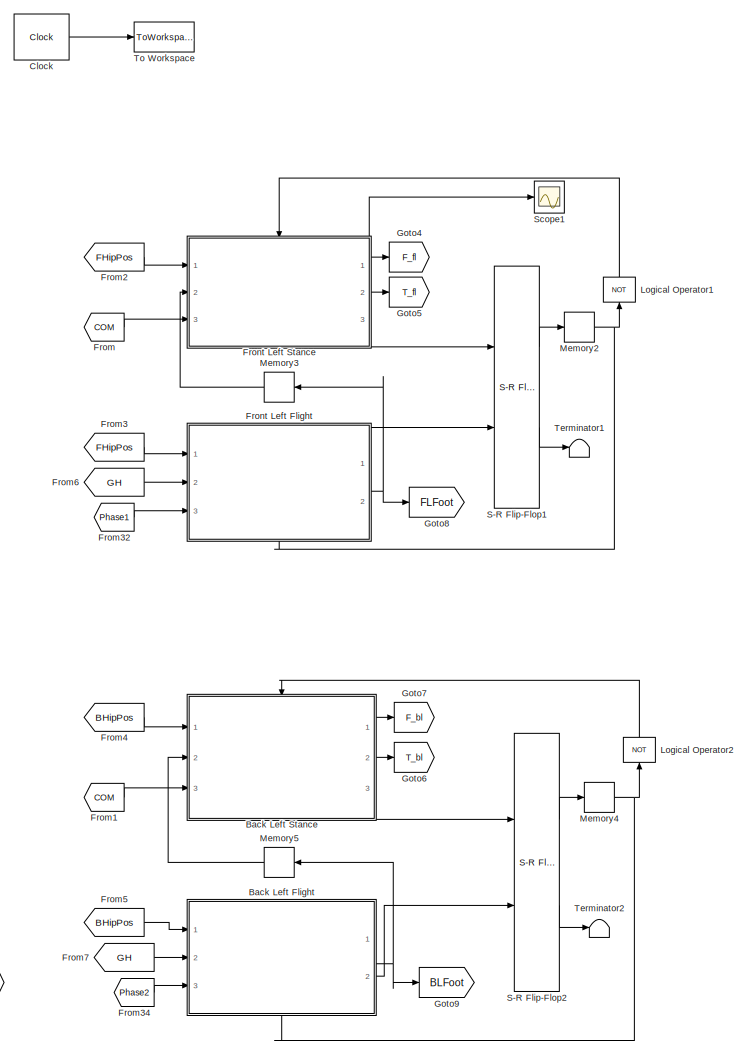
[diagram: root canvas - part 1/3, center side, full height]
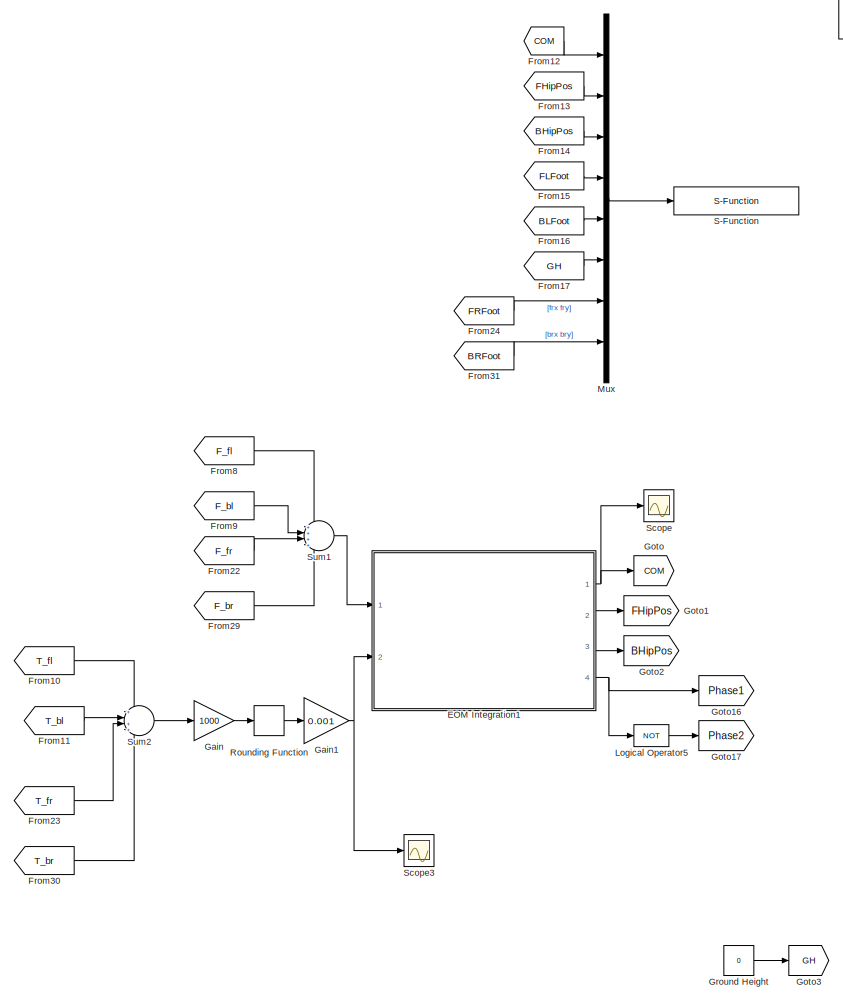
[diagram: root canvas - part 2/3, left side, full height]
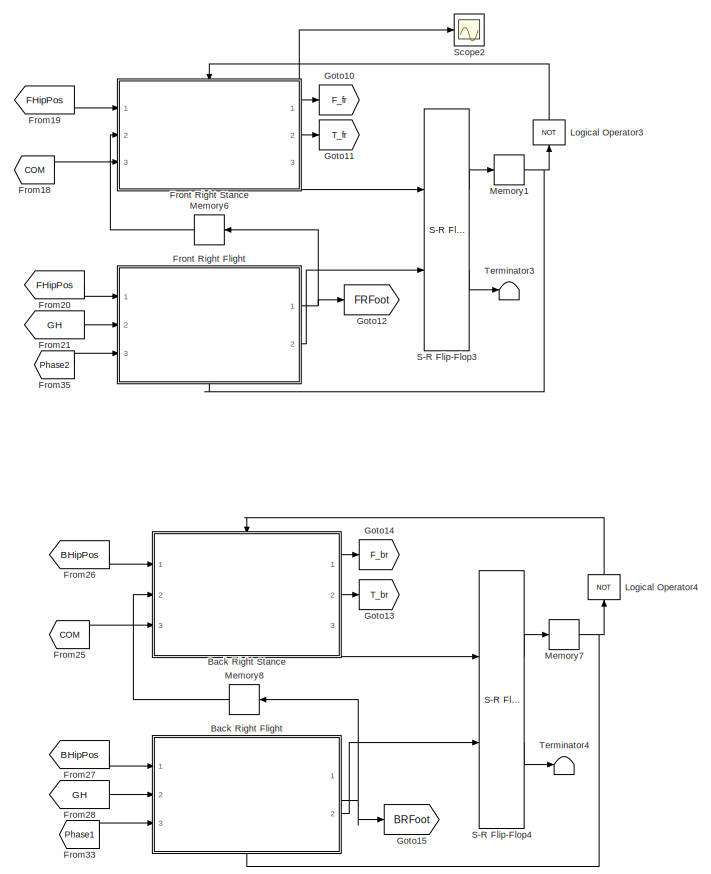
[diagram: root canvas - part 3/3, right side, full height]
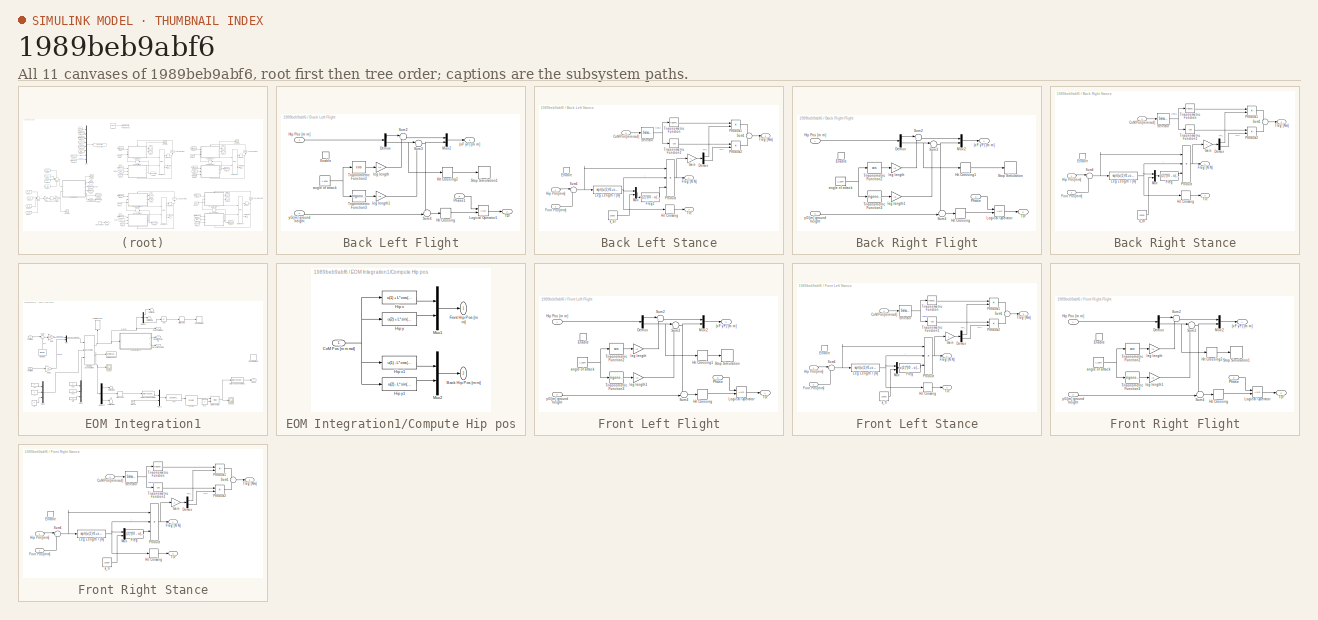
[diagram: thumbnail index - all 11 canvases of the model, root first then tree order]
MODEL slx_1989beb9abf6
KIND model
CONFIG AbsTol = 1e-6
CONFIG FixedStep = auto
CONFIG MaxStep = 1e-3
CONFIG MinStep = auto
CONFIG RelTol = 1e-4
CONFIG SampleTimeConstraint = Unconstrained
CONFIG Solver = ode45
CONFIG SolverMode = Auto
CONFIG SolverName = ode45
CONFIG StartTime = 0.0
CONFIG StopTime = 29
BLOCK [SubSystem] Back Left Flight
  Ports = [3, 2, 1]
  RequestExecContextInheritance = off
  Variant = off
BLOCK [Outport] Back Left Flight/(xF yF) [m m]
  AttributesFormatString = %<OutputWhenDisabled>
  IconDisplay = Port number
  InitialOutput = [0 0]
BLOCK [Demux] Back Left Flight/Demux
  DisplayOption = bar
  Outputs = 2
  Ports = [1, 2]
BLOCK [EnablePort] Back Left Flight/Enable
  Ports = []
  StatesWhenEnabling = reset
BLOCK [Inport] Back Left Flight/Hip Pos [m m]
  IconDisplay = Port number
BLOCK [HitCross] Back Left Flight/Hit Crossing
  HitCrossingDirection = falling
  Ports = [1, 1]
BLOCK [HitCross] Back Left Flight/Hit Crossing2
  HitCrossingDirection = falling
  HitCrossingOffset = -1
  Ports = [1, 1]
BLOCK [Logic] Back Left Flight/Logical Operator1
  AllPortsSameDT = off
  OutDataTypeStr = boolean
  Ports = [2, 1]
BLOCK [Mux] Back Left Flight/Mux2
  DisplayOption = bar
  Inputs = 2
  Ports = [2, 1]
BLOCK [Inport] Back Left Flight/Phase1
  IconDisplay = Port number
  Port = 3
BLOCK [Stop] Back Left Flight/Stop Simulation1
BLOCK [Sum] Back Left Flight/Sum2
  IconShape = round
  InputSameDT = off
  Inputs = |++
  OutDataTypeStr = Inherit: Inherit via internal rule
  Ports = [2, 1]
  SaturateOnIntegerOverflow = off
BLOCK [Sum] Back Left Flight/Sum3
  IconShape = round
  InputSameDT = off
  Inputs = |+-
  OutDataTypeStr = Inherit: Inherit via internal rule
  Ports = [2, 1]
  SaturateOnIntegerOverflow = off
BLOCK [Sum] Back Left Flight/Sum4
  IconShape = round
  InputSameDT = off
  Inputs = +-|
  OutDataTypeStr = Inherit: Inherit via internal rule
  Ports = [2, 1]
  SaturateOnIntegerOverflow = off
BLOCK [Outport] Back Left Flight/TD!
  AttributesFormatString = %<OutputWhenDisabled>
  IconDisplay = Port number
  InitialOutput = 0
  OutputWhenDisabled = reset
  Port = 2
BLOCK [Trigonometry] Back Left Flight/Trigonometric Function2
  Operator = cos
  Ports = [1, 1]
BLOCK [Trigonometry] Back Left Flight/Trigonometric Function3
  Ports = [1, 1]
BLOCK [Constant] Back Left Flight/angle of attack
  Value = 1.1694
BLOCK [Gain] Back Left Flight/leg length
  Gain = l0
  OutDataTypeStr = Inherit: Inherit via internal rule
  ParamDataTypeStr = Inherit: Inherit via internal rule
  SaturateOnIntegerOverflow = off
BLOCK [Gain] Back Left Flight/leg length1
  Gain = l0
  OutDataTypeStr = Inherit: Inherit via internal rule
  ParamDataTypeStr = Inherit: Inherit via internal rule
  SaturateOnIntegerOverflow = off
BLOCK [Inport] Back Left Flight/yG [m] ground height
  IconDisplay = Port number
  Port = 2
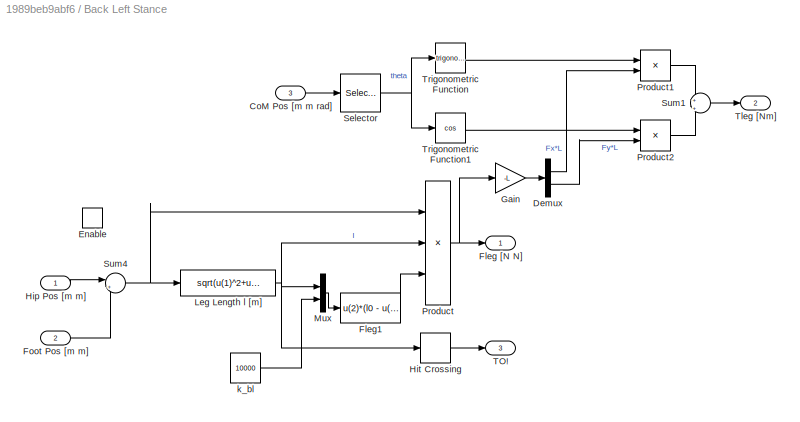
BLOCK [SubSystem] Back Left Stance
  Ports = [3, 3, 1]
  RequestExecContextInheritance = off
  Variant = off
BLOCK [Inport] Back Left Stance/CoM Pos [m m rad]
  IconDisplay = Port number
  Port = 3
BLOCK [Demux] Back Left Stance/Demux
  DisplayOption = bar
  Outputs = 2
  Ports = [1, 2]
BLOCK [EnablePort] Back Left Stance/Enable
  Ports = []
  StatesWhenEnabling = reset
BLOCK [Outport] Back Left Stance/Fleg [N N]
  AttributesFormatString = %<OutputWhenDisabled>
  IconDisplay = Port number
  InitialOutput = [0 0]
  OutputWhenDisabled = reset
BLOCK [Fcn] Back Left Stance/Fleg1
  Expr = u(2)*(l0 - u(1))
BLOCK [Inport] Back Left Stance/Foot Pos [m m]
  IconDisplay = Port number
  Port = 2
BLOCK [Gain] Back Left Stance/Gain
  Gain = -L
  OutDataTypeStr = Inherit: Inherit via internal rule
  ParamDataTypeStr = Inherit: Inherit via internal rule
  SaturateOnIntegerOverflow = off
BLOCK [Inport] Back Left Stance/Hip Pos [m m]
  IconDisplay = Port number
BLOCK [HitCross] Back Left Stance/Hit Crossing
  HitCrossingDirection = rising
  HitCrossingOffset = l0
  Ports = [1, 1]
BLOCK [Fcn] Back Left Stance/Leg Length l [m]
  Expr = sqrt(u(1)^2+u(2)^2)
BLOCK [Mux] Back Left Stance/Mux
  DisplayOption = bar
  Inputs = 2
  Ports = [2, 1]
BLOCK [Product] Back Left Stance/Product
  InputSameDT = off
  Inputs = */*
  OutDataTypeStr = Inherit: Inherit via internal rule
  Ports = [3, 1]
  RndMeth = Floor
  SaturateOnIntegerOverflow = off
BLOCK [Product] Back Left Stance/Product1
  InputSameDT = off
  OutDataTypeStr = Inherit: Inherit via internal rule
  Ports = [2, 1]
  RndMeth = Floor
  SaturateOnIntegerOverflow = off
BLOCK [Product] Back Left Stance/Product2
  InputSameDT = off
  OutDataTypeStr = Inherit: Inherit via internal rule
  Ports = [2, 1]
  RndMeth = Floor
  SaturateOnIntegerOverflow = off
BLOCK [Selector] Back Left Stance/Selector
  IndexOptions = Index vector (dialog)
  Indices = [3]
  InputPortWidth = 3
  OutputSizes = 1
  Ports = [1, 1]
BLOCK [Sum] Back Left Stance/Sum1
  IconShape = round
  InputSameDT = off
  Inputs = +|+
  OutDataTypeStr = Inherit: Inherit via internal rule
  Ports = [2, 1]
  SaturateOnIntegerOverflow = off
BLOCK [Sum] Back Left Stance/Sum4
  IconShape = round
  InputSameDT = off
  Inputs = |+-
  OutDataTypeStr = Inherit: Inherit via internal rule
  Ports = [2, 1]
  SaturateOnIntegerOverflow = off
BLOCK [Outport] Back Left Stance/TO!
  AttributesFormatString = %<OutputWhenDisabled>
  IconDisplay = Port number
  InitialOutput = [0]
  OutputWhenDisabled = reset
  Port = 3
BLOCK [Outport] Back Left Stance/Tleg [Nm]
  AttributesFormatString = %<OutputWhenDisabled>
  IconDisplay = Port number
  InitialOutput = [0]
  OutputWhenDisabled = reset
  Port = 2
BLOCK [Trigonometry] Back Left Stance/Trigonometric Function
  Ports = [1, 1]
BLOCK [Trigonometry] Back Left Stance/Trigonometric Function1
  Operator = cos
  Ports = [1, 1]
BLOCK [Constant] Back Left Stance/k_bl
  Value = 10000
BLOCK [SubSystem] Back Right Flight
  Ports = [3, 2, 1]
  RequestExecContextInheritance = off
  Variant = off
BLOCK [Outport] Back Right Flight/(xF yF) [m m]
  AttributesFormatString = %<OutputWhenDisabled>
  IconDisplay = Port number
  InitialOutput = [0 0]
BLOCK [Demux] Back Right Flight/Demux
  DisplayOption = bar
  Outputs = 2
  Ports = [1, 2]
BLOCK [EnablePort] Back Right Flight/Enable
  Ports = []
  StatesWhenEnabling = reset
BLOCK [Inport] Back Right Flight/Hip Pos [m m]
  IconDisplay = Port number
BLOCK [HitCross] Back Right Flight/Hit Crossing
  HitCrossingDirection = falling
  Ports = [1, 1]
BLOCK [HitCross] Back Right Flight/Hit Crossing1
  HitCrossingDirection = falling
  HitCrossingOffset = -1
  Ports = [1, 1]
BLOCK [Logic] Back Right Flight/Logical Operator
  AllPortsSameDT = off
  OutDataTypeStr = boolean
  Ports = [2, 1]
BLOCK [Mux] Back Right Flight/Mux2
  DisplayOption = bar
  Inputs = 2
  Ports = [2, 1]
BLOCK [Inport] Back Right Flight/Phase
  IconDisplay = Port number
  Port = 3
BLOCK [Stop] Back Right Flight/Stop Simulation
BLOCK [Sum] Back Right Flight/Sum2
  IconShape = round
  InputSameDT = off
  Inputs = |++
  OutDataTypeStr = Inherit: Inherit via internal rule
  Ports = [2, 1]
  SaturateOnIntegerOverflow = off
BLOCK [Sum] Back Right Flight/Sum3
  IconShape = round
  InputSameDT = off
  Inputs = |+-
  OutDataTypeStr = Inherit: Inherit via internal rule
  Ports = [2, 1]
  SaturateOnIntegerOverflow = off
BLOCK [Sum] Back Right Flight/Sum4
  IconShape = round
  InputSameDT = off
  Inputs = +-|
  OutDataTypeStr = Inherit: Inherit via internal rule
  Ports = [2, 1]
  SaturateOnIntegerOverflow = off
BLOCK [Outport] Back Right Flight/TD!
  AttributesFormatString = %<OutputWhenDisabled>
  IconDisplay = Port number
  InitialOutput = 0
  OutputWhenDisabled = reset
  Port = 2
BLOCK [Trigonometry] Back Right Flight/Trigonometric Function2
  Operator = cos
  Ports = [1, 1]
BLOCK [Trigonometry] Back Right Flight/Trigonometric Function3
  Ports = [1, 1]
BLOCK [Constant] Back Right Flight/angle of attack
  Value = 1.1694
BLOCK [Gain] Back Right Flight/leg length
  Gain = l0
  OutDataTypeStr = Inherit: Inherit via internal rule
  ParamDataTypeStr = Inherit: Inherit via internal rule
  SaturateOnIntegerOverflow = off
BLOCK [Gain] Back Right Flight/leg length1
  Gain = l0
  OutDataTypeStr = Inherit: Inherit via internal rule
  ParamDataTypeStr = Inherit: Inherit via internal rule
  SaturateOnIntegerOverflow = off
BLOCK [Inport] Back Right Flight/yG [m] ground height
  IconDisplay = Port number
  Port = 2
BLOCK [SubSystem] Back Right Stance
  Ports = [3, 3, 1]
  RequestExecContextInheritance = off
  Variant = off
BLOCK [Inport] Back Right Stance/CoM Pos [m m rad]
  IconDisplay = Port number
  Port = 3
BLOCK [Demux] Back Right Stance/Demux
  DisplayOption = bar
  Outputs = 2
  Ports = [1, 2]
BLOCK [EnablePort] Back Right Stance/Enable
  Ports = []
  StatesWhenEnabling = reset
BLOCK [Fcn] Back Right Stance/Fleg
  Expr = u(2)*(l0 - u(1))
BLOCK [Outport] Back Right Stance/Fleg [N N]
  AttributesFormatString = %<OutputWhenDisabled>
  IconDisplay = Port number
  InitialOutput = [0 0]
  OutputWhenDisabled = reset
BLOCK [Inport] Back Right Stance/Foot Pos [m m]
  IconDisplay = Port number
  Port = 2
BLOCK [Gain] Back Right Stance/Gain
  Gain = -L
  OutDataTypeStr = Inherit: Inherit via internal rule
  ParamDataTypeStr = Inherit: Inherit via internal rule
  SaturateOnIntegerOverflow = off
BLOCK [Inport] Back Right Stance/Hip Pos [m m]
  IconDisplay = Port number
BLOCK [HitCross] Back Right Stance/Hit Crossing
  HitCrossingDirection = rising
  HitCrossingOffset = l0
  Ports = [1, 1]
BLOCK [Fcn] Back Right Stance/Leg Length l [m]
  Expr = sqrt(u(1)^2+u(2)^2)
BLOCK [Mux] Back Right Stance/Mux
  DisplayOption = bar
  Inputs = 2
  Ports = [2, 1]
BLOCK [Product] Back Right Stance/Product
  InputSameDT = off
  Inputs = */*
  OutDataTypeStr = Inherit: Inherit via internal rule
  Ports = [3, 1]
  RndMeth = Floor
  SaturateOnIntegerOverflow = off
BLOCK [Product] Back Right Stance/Product1
  InputSameDT = off
  OutDataTypeStr = Inherit: Inherit via internal rule
  Ports = [2, 1]
  RndMeth = Floor
  SaturateOnIntegerOverflow = off
BLOCK [Product] Back Right Stance/Product2
  InputSameDT = off
  OutDataTypeStr = Inherit: Inherit via internal rule
  Ports = [2, 1]
  RndMeth = Floor
  SaturateOnIntegerOverflow = off
BLOCK [Selector] Back Right Stance/Selector
  IndexOptions = Index vector (dialog)
  Indices = [3]
  InputPortWidth = 3
  OutputSizes = 1
  Ports = [1, 1]
BLOCK [Sum] Back Right Stance/Sum1
  IconShape = round
  InputSameDT = off
  Inputs = +|+
  OutDataTypeStr = Inherit: Inherit via internal rule
  Ports = [2, 1]
  SaturateOnIntegerOverflow = off
BLOCK [Sum] Back Right Stance/Sum4
  IconShape = round
  InputSameDT = off
  Inputs = |+-
  OutDataTypeStr = Inherit: Inherit via internal rule
  Ports = [2, 1]
  SaturateOnIntegerOverflow = off
BLOCK [Outport] Back Right Stance/TO!
  AttributesFormatString = %<OutputWhenDisabled>
  IconDisplay = Port number
  InitialOutput = [0]
  OutputWhenDisabled = reset
  Port = 3
BLOCK [Outport] Back Right Stance/Tleg [Nm]
  AttributesFormatString = %<OutputWhenDisabled>
  IconDisplay = Port number
  InitialOutput = [0]
  OutputWhenDisabled = reset
  Port = 2
BLOCK [Trigonometry] Back Right Stance/Trigonometric Function
  Ports = [1, 1]
BLOCK [Trigonometry] Back Right Stance/Trigonometric Function1
  Operator = cos
  Ports = [1, 1]
BLOCK [Constant] Back Right Stance/k_br
  Value = 10000
BLOCK [Clock] Clock
  Decimation = 100
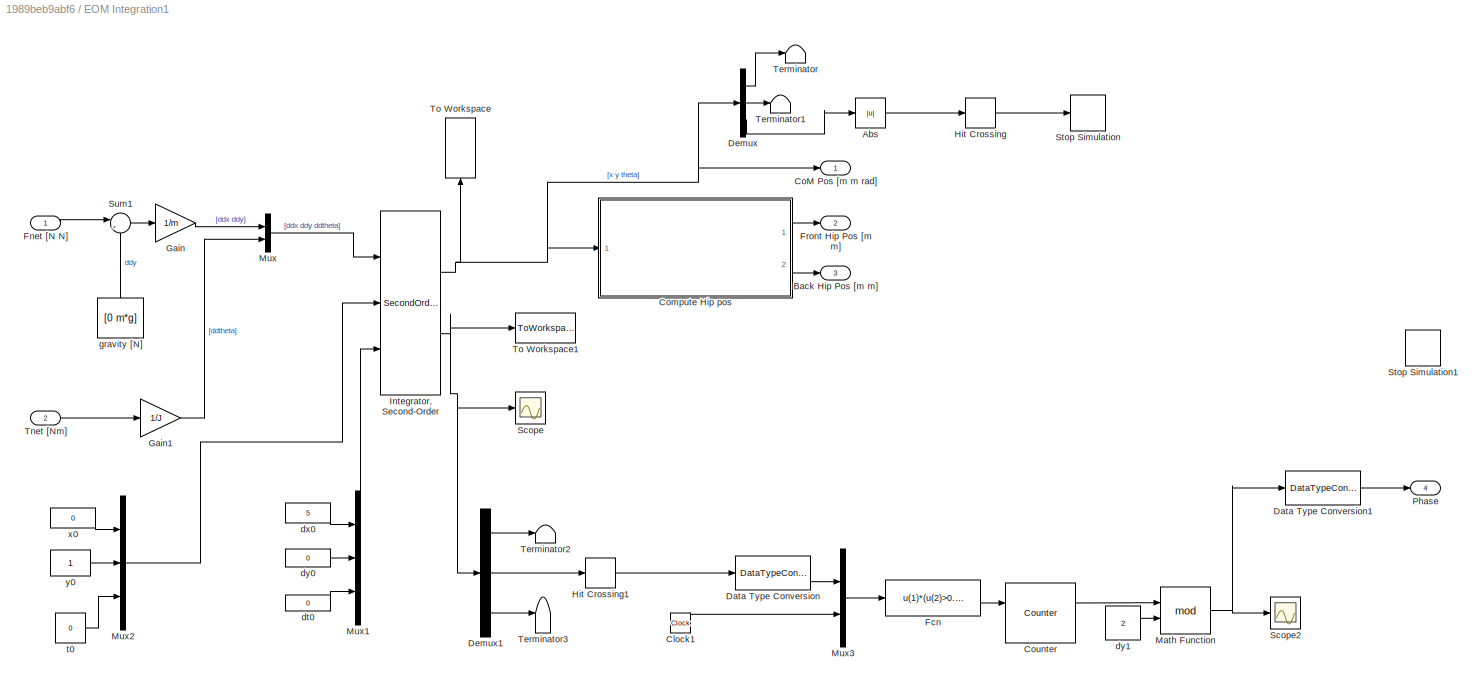
BLOCK [SubSystem] EOM Integration1
  Ports = [2, 4]
  RequestExecContextInheritance = off
  Variant = off
BLOCK [Abs] EOM Integration1/Abs
  SaturateOnIntegerOverflow = off
BLOCK [Outport] EOM Integration1/Back Hip Pos [m m]
  IconDisplay = Port number
  Port = 3
BLOCK [Clock] EOM Integration1/Clock1
BLOCK [Outport] EOM Integration1/CoM Pos [m m rad]
  IconDisplay = Port number
BLOCK [SubSystem] EOM Integration1/Compute Hip pos
  Ports = [1, 2]
  RequestExecContextInheritance = off
  Variant = off
BLOCK [Outport] EOM Integration1/Compute Hip pos/Back Hip Pos [m m]
  IconDisplay = Port number
  Port = 2
BLOCK [Inport] EOM Integration1/Compute Hip pos/CoM Pos [m m rad]
  IconDisplay = Port number
BLOCK [Outport] EOM Integration1/Compute Hip pos/Front Hip Pos [m m]
  IconDisplay = Port number
BLOCK [Fcn] EOM Integration1/Compute Hip pos/Hip x
  Expr = u(1) + L*cos(u(3))
BLOCK [Fcn] EOM Integration1/Compute Hip pos/Hip x1
  Expr = u(1) - L*cos(u(3))
BLOCK [Fcn] EOM Integration1/Compute Hip pos/Hip y
  Expr = u(2) + L*sin(u(3))
BLOCK [Fcn] EOM Integration1/Compute Hip pos/Hip y1
  Expr = u(2) - L*sin(u(3))
BLOCK [Mux] EOM Integration1/Compute Hip pos/Mux1
  DisplayOption = bar
  Inputs = 2
  Ports = [2, 1]
BLOCK [Mux] EOM Integration1/Compute Hip pos/Mux2
  DisplayOption = bar
  Inputs = 2
  Ports = [2, 1]
BLOCK [Reference] EOM Integration1/Counter  REF=dspswit3/Counter
  Ports = [2, 2]
  SourceBlock = dspswit3/Counter
  SourceType = Counter
BLOCK [DataTypeConversion] EOM Integration1/Data Type Conversion
  OutDataTypeStr = double
  RndMeth = Floor
  SaturateOnIntegerOverflow = off
BLOCK [DataTypeConversion] EOM Integration1/Data Type Conversion1
  OutDataTypeStr = boolean
  RndMeth = Floor
  SaturateOnIntegerOverflow = off
BLOCK [Demux] EOM Integration1/Demux
  DisplayOption = bar
  Outputs = 3
  Ports = [1, 3]
BLOCK [Demux] EOM Integration1/Demux1
  DisplayOption = bar
  Outputs = 3
  Ports = [1, 3]
BLOCK [Fcn] EOM Integration1/Fcn
  Expr = u(1)*(u(2)>0.1)
BLOCK [Inport] EOM Integration1/Fnet [N N]
  IconDisplay = Port number
BLOCK [Outport] EOM Integration1/Front Hip Pos [m m]
  IconDisplay = Port number
  Port = 2
BLOCK [Gain] EOM Integration1/Gain
  Gain = 1/m
  OutDataTypeStr = Inherit: Inherit via internal rule
  ParamDataTypeStr = Inherit: Inherit via internal rule
  SaturateOnIntegerOverflow = off
BLOCK [Gain] EOM Integration1/Gain1
  Gain = 1/J
  OutDataTypeStr = Inherit: Inherit via internal rule
  ParamDataTypeStr = Inherit: Inherit via internal rule
  SaturateOnIntegerOverflow = off
BLOCK [HitCross] EOM Integration1/Hit Crossing
  HitCrossingOffset = 1.57
  Ports = [1, 1]
BLOCK [HitCross] EOM Integration1/Hit Crossing1
  HitCrossingDirection = falling
  HitCrossingOffset = 0.0001
  Ports = [1, 1]
BLOCK [SecondOrderIntegrator] EOM Integration1/Integrator, Second-Order
  ICSourceDXDT = external
  ICSourceX = external
  Ports = [3, 2]
BLOCK [Math] EOM Integration1/Math Function
  Operator = mod
  Ports = [2, 1]
BLOCK [Mux] EOM Integration1/Mux
  DisplayOption = bar
  Inputs = 2
  Ports = [2, 1]
BLOCK [Mux] EOM Integration1/Mux1
  DisplayOption = bar
  Inputs = 3
  Ports = [3, 1]
BLOCK [Mux] EOM Integration1/Mux2
  DisplayOption = bar
  Inputs = 3
  Ports = [3, 1]
BLOCK [Mux] EOM Integration1/Mux3
  DisplayOption = bar
  Inputs = 2
  Ports = [2, 1]
BLOCK [Outport] EOM Integration1/Phase
  IconDisplay = Port number
  Port = 4
BLOCK [Scope] EOM Integration1/Scope
  Ports = [1]
  ScopeSpecificationString = Simulink.scopes.TimeScopeBlockCfg('CurrentConfiguration', extmgr.ConfigurationSet(extmgr.Configuration('Core','General UI',true),extmgr.Configuration('Core','Source UI',true),extmgr.Configuration('Sources','WiredSimulink',true,'DataLoggingVariableName','ScopeData2','DataLoggingSaveFormat','Array','DataLoggingDecimation','1','DataLoggingDecimateData',true),extmgr.Configuration('Visuals','Time Domai...<+1771ch>
BLOCK [Scope] EOM Integration1/Scope2
  Ports = [1]
  ScopeSpecificationString = Simulink.scopes.TimeScopeBlockCfg('CurrentConfiguration', extmgr.ConfigurationSet(extmgr.Configuration('Core','General UI',true),extmgr.Configuration('Core','Source UI',true),extmgr.Configuration('Sources','WiredSimulink',true,'DataLoggingVariableName','ScopeData2'),extmgr.Configuration('Visuals','Time Domain',true,'SerializedDisplays',{struct('MinYLimReal','-0.25','MaxYLimReal','2.25','YLabelReal...<+1458ch>
BLOCK [Stop] EOM Integration1/Stop Simulation
BLOCK [Stop] EOM Integration1/Stop Simulation1
  Commented = on
BLOCK [Sum] EOM Integration1/Sum1
  IconShape = round
  InputSameDT = off
  Inputs = |+-
  OutDataTypeStr = Inherit: Inherit via internal rule
  Ports = [2, 1]
  SaturateOnIntegerOverflow = off
BLOCK [Terminator] EOM Integration1/Terminator
BLOCK [Terminator] EOM Integration1/Terminator1
BLOCK [Terminator] EOM Integration1/Terminator2
BLOCK [Terminator] EOM Integration1/Terminator3
BLOCK [Inport] EOM Integration1/Tnet [Nm]
  IconDisplay = Port number
  Port = 2
BLOCK [ToWorkspace] EOM Integration1/To Workspace
  FixptAsFi = on
  MaxDataPoints = inf
  Ports = [1]
  SampleTime = -1
  Save2DSignal = 3-D array (concatenate along third dimension)
  VariableName = pos
BLOCK [ToWorkspace] EOM Integration1/To Workspace1
  FixptAsFi = on
  MaxDataPoints = inf
  Ports = [1]
  SampleTime = -1
  Save2DSignal = 3-D array (concatenate along third dimension)
  VariableName = vel
BLOCK [Constant] EOM Integration1/dt0
  Value = 0
BLOCK [Constant] EOM Integration1/dx0
  Value = 5
BLOCK [Constant] EOM Integration1/dy0
  Value = 0
BLOCK [Constant] EOM Integration1/dy1
  Value = 2
BLOCK [Constant] EOM Integration1/gravity  [N]
  Value = [0 m*g]
BLOCK [Constant] EOM Integration1/t0
  Value = 0
BLOCK [Constant] EOM Integration1/x0
  Value = 0
BLOCK [Constant] EOM Integration1/y0
BLOCK [From] From
  GotoTag = COM
BLOCK [From] From1
  GotoTag = COM
BLOCK [From] From10
  GotoTag = T_fl
BLOCK [From] From11
  GotoTag = T_bl
BLOCK [From] From12
  GotoTag = COM
BLOCK [From] From13
  GotoTag = FHipPos
BLOCK [From] From14
  GotoTag = BHipPos
BLOCK [From] From15
  GotoTag = FLFoot
BLOCK [From] From16
  GotoTag = BLFoot
BLOCK [From] From17
  GotoTag = GH
BLOCK [From] From18
  GotoTag = COM
BLOCK [From] From19
  GotoTag = FHipPos
BLOCK [From] From2
  GotoTag = FHipPos
BLOCK [From] From20
  GotoTag = FHipPos
BLOCK [From] From21
  GotoTag = GH
BLOCK [From] From22
  GotoTag = F_fr
BLOCK [From] From23
  GotoTag = T_fr
BLOCK [From] From24
  GotoTag = FRFoot
BLOCK [From] From25
  GotoTag = COM
BLOCK [From] From26
  GotoTag = BHipPos
BLOCK [From] From27
  GotoTag = BHipPos
BLOCK [From] From28
  GotoTag = GH
BLOCK [From] From29
  GotoTag = F_br
BLOCK [From] From3
  GotoTag = FHipPos
BLOCK [From] From30
  GotoTag = T_br
BLOCK [From] From31
  GotoTag = BRFoot
BLOCK [From] From32
  GotoTag = Phase1
BLOCK [From] From33
  GotoTag = Phase1
BLOCK [From] From34
  GotoTag = Phase2
BLOCK [From] From35
  GotoTag = Phase2
BLOCK [From] From4
  GotoTag = BHipPos
BLOCK [From] From5
  GotoTag = BHipPos
BLOCK [From] From6
  GotoTag = GH
BLOCK [From] From7
  GotoTag = GH
BLOCK [From] From8
  GotoTag = F_fl
BLOCK [From] From9
  GotoTag = F_bl
BLOCK [SubSystem] Front Left Flight
  Ports = [3, 2, 1]
  RequestExecContextInheritance = off
  Variant = off
BLOCK [Outport] Front Left Flight/(xF yF) [m m]
  AttributesFormatString = %<OutputWhenDisabled>
  IconDisplay = Port number
  InitialOutput = [0 0]
  Port = 2
BLOCK [Demux] Front Left Flight/Demux
  DisplayOption = bar
  Outputs = 2
  Ports = [1, 2]
BLOCK [EnablePort] Front Left Flight/Enable
  Ports = []
  StatesWhenEnabling = reset
BLOCK [Inport] Front Left Flight/Hip Pos [m m]
  IconDisplay = Port number
BLOCK [HitCross] Front Left Flight/Hit Crossing
  HitCrossingDirection = falling
  Ports = [1, 1]
BLOCK [HitCross] Front Left Flight/Hit Crossing1
  HitCrossingDirection = falling
  HitCrossingOffset = -1
  Ports = [1, 1]
BLOCK [Logic] Front Left Flight/Logical Operator
  AllPortsSameDT = off
  OutDataTypeStr = boolean
  Ports = [2, 1]
BLOCK [Mux] Front Left Flight/Mux2
  DisplayOption = bar
  Inputs = 2
  Ports = [2, 1]
BLOCK [Inport] Front Left Flight/Phase
  IconDisplay = Port number
  Port = 3
BLOCK [Stop] Front Left Flight/Stop Simulation
BLOCK [Sum] Front Left Flight/Sum2
  IconShape = round
  InputSameDT = off
  Inputs = |++
  OutDataTypeStr = Inherit: Inherit via internal rule
  Ports = [2, 1]
  SaturateOnIntegerOverflow = off
BLOCK [Sum] Front Left Flight/Sum3
  IconShape = round
  InputSameDT = off
  Inputs = |+-
  OutDataTypeStr = Inherit: Inherit via internal rule
  Ports = [2, 1]
  SaturateOnIntegerOverflow = off
BLOCK [Sum] Front Left Flight/Sum4
  IconShape = round
  InputSameDT = off
  Inputs = +-|
  OutDataTypeStr = Inherit: Inherit via internal rule
  Ports = [2, 1]
  SaturateOnIntegerOverflow = off
BLOCK [Outport] Front Left Flight/TD!
  AttributesFormatString = %<OutputWhenDisabled>
  IconDisplay = Port number
  InitialOutput = 0
  OutputWhenDisabled = reset
BLOCK [Trigonometry] Front Left Flight/Trigonometric Function2
  Operator = cos
  Ports = [1, 1]
BLOCK [Trigonometry] Front Left Flight/Trigonometric Function3
  Ports = [1, 1]
BLOCK [Constant] Front Left Flight/angle of attack
  Value = 1.1694
BLOCK [Gain] Front Left Flight/leg length
  Gain = l0
  OutDataTypeStr = Inherit: Inherit via internal rule
  ParamDataTypeStr = Inherit: Inherit via internal rule
  SaturateOnIntegerOverflow = off
BLOCK [Gain] Front Left Flight/leg length1
  Gain = l0
  OutDataTypeStr = Inherit: Inherit via internal rule
  ParamDataTypeStr = Inherit: Inherit via internal rule
  SaturateOnIntegerOverflow = off
BLOCK [Inport] Front Left Flight/yG [m] ground height
  IconDisplay = Port number
  Port = 2
BLOCK [SubSystem] Front Left Stance
  Ports = [3, 3, 1]
  RequestExecContextInheritance = off
  Variant = off
BLOCK [Inport] Front Left Stance/CoM Pos [m m rad]
  IconDisplay = Port number
  Port = 3
BLOCK [Demux] Front Left Stance/Demux
  DisplayOption = bar
  Outputs = 2
  Ports = [1, 2]
BLOCK [EnablePort] Front Left Stance/Enable
  Ports = []
  StatesWhenEnabling = reset
BLOCK [Fcn] Front Left Stance/Fleg
  Expr = u(2)*(l0 - u(1))
BLOCK [Outport] Front Left Stance/Fleg [N N]
  AttributesFormatString = %<OutputWhenDisabled>
  IconDisplay = Port number
  InitialOutput = [0 0]
  OutputWhenDisabled = reset
BLOCK [Inport] Front Left Stance/Foot Pos [m m]
  IconDisplay = Port number
  Port = 2
BLOCK [Gain] Front Left Stance/Gain
  Gain = L
  OutDataTypeStr = Inherit: Inherit via internal rule
  ParamDataTypeStr = Inherit: Inherit via internal rule
  SaturateOnIntegerOverflow = off
BLOCK [Inport] Front Left Stance/Hip Pos [m m]
  IconDisplay = Port number
BLOCK [HitCross] Front Left Stance/Hit Crossing
  HitCrossingDirection = rising
  HitCrossingOffset = l0
  Ports = [1, 1]
BLOCK [Fcn] Front Left Stance/Leg Length l [m]
  Expr = sqrt(u(1)^2+u(2)^2)
BLOCK [Mux] Front Left Stance/Mux
  DisplayOption = bar
  Inputs = 2
  Ports = [2, 1]
BLOCK [Product] Front Left Stance/Product
  InputSameDT = off
  Inputs = */*
  OutDataTypeStr = Inherit: Inherit via internal rule
  Ports = [3, 1]
  RndMeth = Floor
  SaturateOnIntegerOverflow = off
BLOCK [Product] Front Left Stance/Product1
  InputSameDT = off
  OutDataTypeStr = Inherit: Inherit via internal rule
  Ports = [2, 1]
  RndMeth = Floor
  SaturateOnIntegerOverflow = off
BLOCK [Product] Front Left Stance/Product2
  InputSameDT = off
  OutDataTypeStr = Inherit: Inherit via internal rule
  Ports = [2, 1]
  RndMeth = Floor
  SaturateOnIntegerOverflow = off
BLOCK [Selector] Front Left Stance/Selector
  IndexOptions = Index vector (dialog)
  Indices = [3]
  InputPortWidth = 3
  OutputSizes = 1
  Ports = [1, 1]
BLOCK [Sum] Front Left Stance/Sum1
  IconShape = round
  InputSameDT = off
  Inputs = +|+
  OutDataTypeStr = Inherit: Inherit via internal rule
  Ports = [2, 1]
  SaturateOnIntegerOverflow = off
BLOCK [Sum] Front Left Stance/Sum4
  IconShape = round
  InputSameDT = off
  Inputs = |+-
  OutDataTypeStr = Inherit: Inherit via internal rule
  Ports = [2, 1]
  SaturateOnIntegerOverflow = off
BLOCK [Outport] Front Left Stance/TO!
  AttributesFormatString = %<OutputWhenDisabled>
  IconDisplay = Port number
  InitialOutput = [0]
  OutputWhenDisabled = reset
  Port = 3
BLOCK [Outport] Front Left Stance/Tleg [Nm]
  AttributesFormatString = %<OutputWhenDisabled>
  IconDisplay = Port number
  InitialOutput = [0]
  OutputWhenDisabled = reset
  Port = 2
BLOCK [Trigonometry] Front Left Stance/Trigonometric Function
  Ports = [1, 1]
BLOCK [Trigonometry] Front Left Stance/Trigonometric Function1
  Operator = cos
  Ports = [1, 1]
BLOCK [Constant] Front Left Stance/k_fl
  Value = 10000
BLOCK [SubSystem] Front Right Flight
  Ports = [3, 2, 1]
  RequestExecContextInheritance = off
  Variant = off
BLOCK [Outport] Front Right Flight/(xF yF) [m m]
  AttributesFormatString = %<OutputWhenDisabled>
  IconDisplay = Port number
  InitialOutput = [0 0]
BLOCK [Demux] Front Right Flight/Demux
  DisplayOption = bar
  Outputs = 2
  Ports = [1, 2]
BLOCK [EnablePort] Front Right Flight/Enable
  Ports = []
  StatesWhenEnabling = reset
BLOCK [Inport] Front Right Flight/Hip Pos [m m]
  IconDisplay = Port number
BLOCK [HitCross] Front Right Flight/Hit Crossing
  HitCrossingDirection = falling
  Ports = [1, 1]
BLOCK [HitCross] Front Right Flight/Hit Crossing2
  HitCrossingDirection = falling
  HitCrossingOffset = -1
  Ports = [1, 1]
BLOCK [Logic] Front Right Flight/Logical Operator
  AllPortsSameDT = off
  OutDataTypeStr = boolean
  Ports = [2, 1]
BLOCK [Mux] Front Right Flight/Mux2
  DisplayOption = bar
  Inputs = 2
  Ports = [2, 1]
BLOCK [Inport] Front Right Flight/Phase
  IconDisplay = Port number
  Port = 3
BLOCK [Stop] Front Right Flight/Stop Simulation1
BLOCK [Sum] Front Right Flight/Sum2
  IconShape = round
  InputSameDT = off
  Inputs = |++
  OutDataTypeStr = Inherit: Inherit via internal rule
  Ports = [2, 1]
  SaturateOnIntegerOverflow = off
BLOCK [Sum] Front Right Flight/Sum3
  IconShape = round
  InputSameDT = off
  Inputs = |+-
  OutDataTypeStr = Inherit: Inherit via internal rule
  Ports = [2, 1]
  SaturateOnIntegerOverflow = off
BLOCK [Sum] Front Right Flight/Sum4
  IconShape = round
  InputSameDT = off
  Inputs = +-|
  OutDataTypeStr = Inherit: Inherit via internal rule
  Ports = [2, 1]
  SaturateOnIntegerOverflow = off
BLOCK [Outport] Front Right Flight/TD!
  AttributesFormatString = %<OutputWhenDisabled>
  IconDisplay = Port number
  InitialOutput = 0
  OutputWhenDisabled = reset
  Port = 2
BLOCK [Trigonometry] Front Right Flight/Trigonometric Function2
  Operator = cos
  Ports = [1, 1]
BLOCK [Trigonometry] Front Right Flight/Trigonometric Function3
  Ports = [1, 1]
BLOCK [Constant] Front Right Flight/angle of attack
  Value = 1.1694
BLOCK [Gain] Front Right Flight/leg length
  Gain = l0
  OutDataTypeStr = Inherit: Inherit via internal rule
  ParamDataTypeStr = Inherit: Inherit via internal rule
  SaturateOnIntegerOverflow = off
BLOCK [Gain] Front Right Flight/leg length1
  Gain = l0
  OutDataTypeStr = Inherit: Inherit via internal rule
  ParamDataTypeStr = Inherit: Inherit via internal rule
  SaturateOnIntegerOverflow = off
BLOCK [Inport] Front Right Flight/yG [m] ground height
  IconDisplay = Port number
  Port = 2
BLOCK [SubSystem] Front Right Stance
  Ports = [3, 3, 1]
  RequestExecContextInheritance = off
  Variant = off
BLOCK [Inport] Front Right Stance/CoM Pos [m m rad]
  IconDisplay = Port number
  Port = 3
BLOCK [Demux] Front Right Stance/Demux
  DisplayOption = bar
  Outputs = 2
  Ports = [1, 2]
BLOCK [EnablePort] Front Right Stance/Enable
  Ports = []
  StatesWhenEnabling = reset
BLOCK [Fcn] Front Right Stance/Fleg
  Expr = u(2)*(l0 - u(1))
BLOCK [Outport] Front Right Stance/Fleg [N N]
  AttributesFormatString = %<OutputWhenDisabled>
  IconDisplay = Port number
  InitialOutput = [0 0]
  OutputWhenDisabled = reset
BLOCK [Inport] Front Right Stance/Foot Pos [m m]
  IconDisplay = Port number
  Port = 2
BLOCK [Gain] Front Right Stance/Gain
  Gain = L
  OutDataTypeStr = Inherit: Inherit via internal rule
  ParamDataTypeStr = Inherit: Inherit via internal rule
  SaturateOnIntegerOverflow = off
BLOCK [Inport] Front Right Stance/Hip Pos [m m]
  IconDisplay = Port number
BLOCK [HitCross] Front Right Stance/Hit Crossing
  HitCrossingDirection = rising
  HitCrossingOffset = l0
  Ports = [1, 1]
BLOCK [Fcn] Front Right Stance/Leg Length l [m]
  Expr = sqrt(u(1)^2+u(2)^2)
BLOCK [Mux] Front Right Stance/Mux
  DisplayOption = bar
  Inputs = 2
  Ports = [2, 1]
BLOCK [Product] Front Right Stance/Product
  InputSameDT = off
  Inputs = */*
  OutDataTypeStr = Inherit: Inherit via internal rule
  Ports = [3, 1]
  RndMeth = Floor
  SaturateOnIntegerOverflow = off
BLOCK [Product] Front Right Stance/Product1
  InputSameDT = off
  OutDataTypeStr = Inherit: Inherit via internal rule
  Ports = [2, 1]
  RndMeth = Floor
  SaturateOnIntegerOverflow = off
BLOCK [Product] Front Right Stance/Product2
  InputSameDT = off
  OutDataTypeStr = Inherit: Inherit via internal rule
  Ports = [2, 1]
  RndMeth = Floor
  SaturateOnIntegerOverflow = off
BLOCK [Selector] Front Right Stance/Selector
  IndexOptions = Index vector (dialog)
  Indices = [3]
  InputPortWidth = 3
  OutputSizes = 1
  Ports = [1, 1]
BLOCK [Sum] Front Right Stance/Sum1
  IconShape = round
  InputSameDT = off
  Inputs = +|+
  OutDataTypeStr = Inherit: Inherit via internal rule
  Ports = [2, 1]
  SaturateOnIntegerOverflow = off
BLOCK [Sum] Front Right Stance/Sum4
  IconShape = round
  InputSameDT = off
  Inputs = |+-
  OutDataTypeStr = Inherit: Inherit via internal rule
  Ports = [2, 1]
  SaturateOnIntegerOverflow = off
BLOCK [Outport] Front Right Stance/TO!
  AttributesFormatString = %<OutputWhenDisabled>
  IconDisplay = Port number
  InitialOutput = [0]
  OutputWhenDisabled = reset
  Port = 3
BLOCK [Outport] Front Right Stance/Tleg [Nm]
  AttributesFormatString = %<OutputWhenDisabled>
  IconDisplay = Port number
  InitialOutput = [0]
  OutputWhenDisabled = reset
  Port = 2
BLOCK [Trigonometry] Front Right Stance/Trigonometric Function
  Ports = [1, 1]
BLOCK [Trigonometry] Front Right Stance/Trigonometric Function1
  Operator = cos
  Ports = [1, 1]
BLOCK [Constant] Front Right Stance/k_fr
  Value = 10000
BLOCK [Gain] Gain
  Gain = 1000
  OutDataTypeStr = Inherit: Inherit via internal rule
  ParamDataTypeStr = Inherit: Inherit via internal rule
  SaturateOnIntegerOverflow = off
BLOCK [Gain] Gain1
  Gain = 0.001
  OutDataTypeStr = Inherit: Inherit via internal rule
  ParamDataTypeStr = Inherit: Inherit via internal rule
  SaturateOnIntegerOverflow = off
BLOCK [Goto] Goto
  GotoTag = COM
BLOCK [Goto] Goto1
  GotoTag = FHipPos
BLOCK [Goto] Goto10
  GotoTag = F_fr
BLOCK [Goto] Goto11
  GotoTag = T_fr
BLOCK [Goto] Goto12
  GotoTag = FRFoot
BLOCK [Goto] Goto13
  GotoTag = T_br
BLOCK [Goto] Goto14
  GotoTag = F_br
BLOCK [Goto] Goto15
  GotoTag = BRFoot
BLOCK [Goto] Goto16
  GotoTag = Phase1
BLOCK [Goto] Goto17
  GotoTag = Phase2
BLOCK [Goto] Goto2
  GotoTag = BHipPos
BLOCK [Goto] Goto3
  GotoTag = GH
BLOCK [Goto] Goto4
  GotoTag = F_fl
BLOCK [Goto] Goto5
  GotoTag = T_fl
BLOCK [Goto] Goto6
  GotoTag = T_bl
BLOCK [Goto] Goto7
  GotoTag = F_bl
BLOCK [Goto] Goto8
  GotoTag = FLFoot
BLOCK [Goto] Goto9
  GotoTag = BLFoot
BLOCK [Constant] Ground Height
  Value = 0
BLOCK [Logic] Logical Operator1
  AllPortsSameDT = off
  Operator = NOT
  OutDataTypeStr = boolean
  Ports = [1, 1]
BLOCK [Logic] Logical Operator2
  AllPortsSameDT = off
  Operator = NOT
  OutDataTypeStr = boolean
  Ports = [1, 1]
BLOCK [Logic] Logical Operator3
  AllPortsSameDT = off
  Operator = NOT
  OutDataTypeStr = boolean
  Ports = [1, 1]
BLOCK [Logic] Logical Operator4
  AllPortsSameDT = off
  Operator = NOT
  OutDataTypeStr = boolean
  Ports = [1, 1]
BLOCK [Logic] Logical Operator5
  AllPortsSameDT = off
  Operator = NOT
  OutDataTypeStr = boolean
  Ports = [1, 1]
BLOCK [Memory] Memory1
  X0 = 1
BLOCK [Memory] Memory2
  X0 = 1
BLOCK [Memory] Memory3
  X0 = [(x0 - xrf0) (y0 - yrf0) ]
BLOCK [Memory] Memory4
  X0 = 1
BLOCK [Memory] Memory5
  X0 = [(x0 - xrb0) (y0 - yrb0)]
BLOCK [Memory] Memory6
  X0 = [(x0 - xrf0) (y0 - yrf0) ]
BLOCK [Memory] Memory7
  X0 = 1
BLOCK [Memory] Memory8
  X0 = [(x0 - xrb0) (y0 - yrb0)]
BLOCK [Mux] Mux
  DisplayOption = bar
  Inputs = 8
  Ports = [8, 1]
BLOCK [Rounding] Rounding Function
  Operator = round
BLOCK [S-Function] S-Function
  EnableBusSupport = off
  FunctionName = AnimQUAD
  Parameters = 0.005
  Ports = [1]
  SFunctionDeploymentMode = off
BLOCK [Reference] S-R Flip-Flop1  REF=simulink_extras/Flip Flops/S-R
Flip-Flop
  Ports = [2, 2]
  SourceBlock = simulink_extras/Flip Flops/S-R\nFlip-Flop
  SourceType = SRFlipFlop
BLOCK [Reference] S-R Flip-Flop2  REF=simulink_extras/Flip Flops/S-R
Flip-Flop
  Ports = [2, 2]
  SourceBlock = simulink_extras/Flip Flops/S-R\nFlip-Flop
  SourceType = SRFlipFlop
BLOCK [Reference] S-R Flip-Flop3  REF=simulink_extras/Flip Flops/S-R
Flip-Flop
  Ports = [2, 2]
  SourceBlock = simulink_extras/Flip Flops/S-R\nFlip-Flop
  SourceType = SRFlipFlop
BLOCK [Reference] S-R Flip-Flop4  REF=simulink_extras/Flip Flops/S-R
Flip-Flop
  Ports = [2, 2]
  SourceBlock = simulink_extras/Flip Flops/S-R\nFlip-Flop
  SourceType = SRFlipFlop
BLOCK [Scope] Scope
  Ports = [1]
  ScopeSpecificationString = Simulink.scopes.TimeScopeBlockCfg('CurrentConfiguration', extmgr.ConfigurationSet(extmgr.Configuration('Core','General UI',true),extmgr.Configuration('Core','Source UI',true),extmgr.Configuration('Sources','WiredSimulink',true,'DataLoggingSaveFormat','Array','DataLoggingDecimation','1','DataLoggingDecimateData',true),extmgr.Configuration('Visuals','Time Domain',true,'SerializedDisplays',{struct('M...<+1703ch>
BLOCK [Scope] Scope1
  Ports = [1]
  ScopeSpecificationString = Simulink.scopes.TimeScopeBlockCfg('CurrentConfiguration', extmgr.ConfigurationSet(extmgr.Configuration('Core','General UI',true),extmgr.Configuration('Core','Source UI',true),extmgr.Configuration('Sources','WiredSimulink',true,'DataLoggingVariableName','ScopeData1','DataLoggingLimitDataPoints',true,'DataLoggingSaveFormat','Array','DataLoggingDecimation','1','DataLoggingDecimateData',true),extmgr.C...<+899ch>
BLOCK [Scope] Scope2
  Ports = [1]
  ScopeSpecificationString = Simulink.scopes.TimeScopeBlockCfg('CurrentConfiguration', extmgr.ConfigurationSet(extmgr.Configuration('Core','General UI',true),extmgr.Configuration('Core','Source UI',true),extmgr.Configuration('Sources','WiredSimulink',true,'DataLoggingVariableName','ScopeData3','DataLoggingLimitDataPoints',true,'DataLoggingSaveFormat','Array','DataLoggingDecimation','1','DataLoggingDecimateData',true),extmgr.C...<+899ch>
BLOCK [Scope] Scope3
  Ports = [1]
  ScopeSpecificationString = Simulink.scopes.TimeScopeBlockCfg('CurrentConfiguration', extmgr.ConfigurationSet(extmgr.Configuration('Core','General UI',true),extmgr.Configuration('Core','Source UI',true),extmgr.Configuration('Sources','WiredSimulink',true,'DataLoggingSaveFormat','Array','DataLoggingDecimation','1','DataLoggingDecimateData',true,'DataLoggingVariableName','ScopeData4'),extmgr.Configuration('Visuals','Time Domai...<+1649ch>
BLOCK [Sum] Sum1
  IconShape = round
  InputSameDT = off
  Inputs = ++++
  OutDataTypeStr = Inherit: Inherit via internal rule
  Ports = [4, 1]
  SaturateOnIntegerOverflow = off
BLOCK [Sum] Sum2
  IconShape = round
  InputSameDT = off
  Inputs = +|+++
  OutDataTypeStr = Inherit: Inherit via internal rule
  Ports = [4, 1]
  SaturateOnIntegerOverflow = off
BLOCK [Terminator] Terminator1
BLOCK [Terminator] Terminator2
BLOCK [Terminator] Terminator3
BLOCK [Terminator] Terminator4
BLOCK [ToWorkspace] To Workspace
  FixptAsFi = on
  MaxDataPoints = 1
  Ports = [1]
  SampleTime = -1
  Save2DSignal = 3-D array (concatenate along third dimension)
  VariableName = time_of_sim
LINE Back Left Flight/Demux:1 -> Back Left Flight/Sum2:1
NET Back Left Flight/Demux:2 -> Back Left Flight/Hit Crossing2:1, Back Left Flight/Sum3:1
LINE Back Left Flight/Hip Pos [m m]:1 -> Back Left Flight/Demux:1
LINE Back Left Flight/Hit Crossing2:1 -> Back Left Flight/Stop Simulation1:1
LINE Back Left Flight/Hit Crossing:1 -> Back Left Flight/Logical Operator1:2
LINE Back Left Flight/Logical Operator1:1 -> Back Left Flight/TD!:1
LINE Back Left Flight/Mux2:1 -> Back Left Flight/(xF yF) [m m]:1
LINE Back Left Flight/Phase1:1 -> Back Left Flight/Logical Operator1:1
LINE Back Left Flight/Sum2:1 -> Back Left Flight/Mux2:1
NET Back Left Flight/Sum3:1 -> Back Left Flight/Mux2:2, Back Left Flight/Sum4:1
LINE Back Left Flight/Sum4:1 -> Back Left Flight/Hit Crossing:1
LINE Back Left Flight/Trigonometric Function2:1 -> Back Left Flight/leg length:1
LINE Back Left Flight/Trigonometric Function3:1 -> Back Left Flight/leg length1:1
NET Back Left Flight/angle of attack:1 -> Back Left Flight/Trigonometric Function2:1, Back Left Flight/Trigonometric Function3:1
LINE Back Left Flight/leg length1:1 -> Back Left Flight/Sum3:2
LINE Back Left Flight/leg length:1 -> Back Left Flight/Sum2:2
LINE Back Left Flight/yG [m] ground height:1 -> Back Left Flight/Sum4:2
NET Back Left Flight:1 -> Goto9:1, Memory5:1
LINE Back Left Flight:2 -> S-R Flip-Flop2:2
LINE Back Left Stance/CoM Pos [m m rad]:1 -> Back Left Stance/Selector:1
LINE Back Left Stance/Demux:1 -> Back Left Stance/Product1:2
LINE Back Left Stance/Demux:2 -> Back Left Stance/Product2:2
LINE Back Left Stance/Fleg1:1 -> Back Left Stance/Product:3
LINE Back Left Stance/Foot Pos [m m]:1 -> Back Left Stance/Sum4:2
LINE Back Left Stance/Gain:1 -> Back Left Stance/Demux:1
LINE Back Left Stance/Hip Pos [m m]:1 -> Back Left Stance/Sum4:1
LINE Back Left Stance/Hit Crossing:1 -> Back Left Stance/TO!:1
NET Back Left Stance/Leg Length l [m]:1 -> Back Left Stance/Hit Crossing:1, Back Left Stance/Mux:1, Back Left Stance/Product:2
LINE Back Left Stance/Mux:1 -> Back Left Stance/Fleg1:1
LINE Back Left Stance/Product1:1 -> Back Left Stance/Sum1:1
LINE Back Left Stance/Product2:1 -> Back Left Stance/Sum1:2
NET Back Left Stance/Product:1 -> Back Left Stance/Fleg [N N]:1, Back Left Stance/Gain:1
NET Back Left Stance/Selector:1 -> Back Left Stance/Trigonometric Function1:1, Back Left Stance/Trigonometric Function:1
LINE Back Left Stance/Sum1:1 -> Back Left Stance/Tleg [Nm]:1
NET Back Left Stance/Sum4:1 -> Back Left Stance/Leg Length l [m]:1, Back Left Stance/Product:1
LINE Back Left Stance/Trigonometric Function1:1 -> Back Left Stance/Product2:1
LINE Back Left Stance/Trigonometric Function:1 -> Back Left Stance/Product1:1
LINE Back Left Stance/k_bl:1 -> Back Left Stance/Mux:2
LINE Back Left Stance:1 -> Goto7:1
LINE Back Left Stance:2 -> Goto6:1
LINE Back Left Stance:3 -> S-R Flip-Flop2:1
LINE Back Right Flight/Demux:1 -> Back Right Flight/Sum2:1
NET Back Right Flight/Demux:2 -> Back Right Flight/Hit Crossing1:1, Back Right Flight/Sum3:1
LINE Back Right Flight/Hip Pos [m m]:1 -> Back Right Flight/Demux:1
LINE Back Right Flight/Hit Crossing1:1 -> Back Right Flight/Stop Simulation:1
LINE Back Right Flight/Hit Crossing:1 -> Back Right Flight/Logical Operator:2
LINE Back Right Flight/Logical Operator:1 -> Back Right Flight/TD!:1
LINE Back Right Flight/Mux2:1 -> Back Right Flight/(xF yF) [m m]:1
LINE Back Right Flight/Phase:1 -> Back Right Flight/Logical Operator:1
LINE Back Right Flight/Sum2:1 -> Back Right Flight/Mux2:1
NET Back Right Flight/Sum3:1 -> Back Right Flight/Mux2:2, Back Right Flight/Sum4:1
LINE Back Right Flight/Sum4:1 -> Back Right Flight/Hit Crossing:1
LINE Back Right Flight/Trigonometric Function2:1 -> Back Right Flight/leg length:1
LINE Back Right Flight/Trigonometric Function3:1 -> Back Right Flight/leg length1:1
NET Back Right Flight/angle of attack:1 -> Back Right Flight/Trigonometric Function2:1, Back Right Flight/Trigonometric Function3:1
LINE Back Right Flight/leg length1:1 -> Back Right Flight/Sum3:2
LINE Back Right Flight/leg length:1 -> Back Right Flight/Sum2:2
LINE Back Right Flight/yG [m] ground height:1 -> Back Right Flight/Sum4:2
NET Back Right Flight:1 -> Goto15:1, Memory8:1
LINE Back Right Flight:2 -> S-R Flip-Flop4:2
LINE Back Right Stance/CoM Pos [m m rad]:1 -> Back Right Stance/Selector:1
LINE Back Right Stance/Demux:1 -> Back Right Stance/Product1:2
LINE Back Right Stance/Demux:2 -> Back Right Stance/Product2:2
LINE Back Right Stance/Fleg:1 -> Back Right Stance/Product:3
LINE Back Right Stance/Foot Pos [m m]:1 -> Back Right Stance/Sum4:2
LINE Back Right Stance/Gain:1 -> Back Right Stance/Demux:1
LINE Back Right Stance/Hip Pos [m m]:1 -> Back Right Stance/Sum4:1
LINE Back Right Stance/Hit Crossing:1 -> Back Right Stance/TO!:1
NET Back Right Stance/Leg Length l [m]:1 -> Back Right Stance/Hit Crossing:1, Back Right Stance/Mux:1, Back Right Stance/Product:2
LINE Back Right Stance/Mux:1 -> Back Right Stance/Fleg:1
LINE Back Right Stance/Product1:1 -> Back Right Stance/Sum1:1
LINE Back Right Stance/Product2:1 -> Back Right Stance/Sum1:2
NET Back Right Stance/Product:1 -> Back Right Stance/Fleg [N N]:1, Back Right Stance/Gain:1
NET Back Right Stance/Selector:1 -> Back Right Stance/Trigonometric Function1:1, Back Right Stance/Trigonometric Function:1
LINE Back Right Stance/Sum1:1 -> Back Right Stance/Tleg [Nm]:1
NET Back Right Stance/Sum4:1 -> Back Right Stance/Leg Length l [m]:1, Back Right Stance/Product:1
LINE Back Right Stance/Trigonometric Function1:1 -> Back Right Stance/Product2:1
LINE Back Right Stance/Trigonometric Function:1 -> Back Right Stance/Product1:1
LINE Back Right Stance/k_br:1 -> Back Right Stance/Mux:2
LINE Back Right Stance:1 -> Goto14:1
LINE Back Right Stance:2 -> Goto13:1
LINE Back Right Stance:3 -> S-R Flip-Flop4:1
LINE Clock:1 -> To Workspace:1
LINE EOM Integration1/Abs:1 -> EOM Integration1/Hit Crossing:1
LINE EOM Integration1/Clock1:1 -> EOM Integration1/Mux3:2
NET EOM Integration1/Compute Hip pos/CoM Pos [m m rad]:1 -> EOM Integration1/Compute Hip pos/Hip x1:1, EOM Integration1/Compute Hip pos/Hip x:1, EOM Integration1/Compute Hip pos/Hip y1:1, EOM Integration1/Compute Hip pos/Hip y:1
LINE EOM Integration1/Compute Hip pos/Hip x1:1 -> EOM Integration1/Compute Hip pos/Mux2:1
LINE EOM Integration1/Compute Hip pos/Hip x:1 -> EOM Integration1/Compute Hip pos/Mux1:1
LINE EOM Integration1/Compute Hip pos/Hip y1:1 -> EOM Integration1/Compute Hip pos/Mux2:2
LINE EOM Integration1/Compute Hip pos/Hip y:1 -> EOM Integration1/Compute Hip pos/Mux1:2
LINE EOM Integration1/Compute Hip pos/Mux1:1 -> EOM Integration1/Compute Hip pos/Front Hip Pos [m m]:1
LINE EOM Integration1/Compute Hip pos/Mux2:1 -> EOM Integration1/Compute Hip pos/Back Hip Pos [m m]:1
LINE EOM Integration1/Compute Hip pos:1 -> EOM Integration1/Front Hip Pos [m m]:1
LINE EOM Integration1/Compute Hip pos:2 -> EOM Integration1/Back Hip Pos [m m]:1
LINE EOM Integration1/Counter:1 -> EOM Integration1/Math Function:1
LINE EOM Integration1/Data Type Conversion1:1 -> EOM Integration1/Phase:1
LINE EOM Integration1/Data Type Conversion:1 -> EOM Integration1/Mux3:1
LINE EOM Integration1/Demux1:1 -> EOM Integration1/Terminator2:1
LINE EOM Integration1/Demux1:2 -> EOM Integration1/Hit Crossing1:1
LINE EOM Integration1/Demux1:3 -> EOM Integration1/Terminator3:1
LINE EOM Integration1/Demux:1 -> EOM Integration1/Terminator:1
LINE EOM Integration1/Demux:2 -> EOM Integration1/Terminator1:1
LINE EOM Integration1/Demux:3 -> EOM Integration1/Abs:1
LINE EOM Integration1/Fcn:1 -> EOM Integration1/Counter:1
LINE EOM Integration1/Fnet [N N]:1 -> EOM Integration1/Sum1:1
LINE EOM Integration1/Gain1:1 -> EOM Integration1/Mux:2
LINE EOM Integration1/Gain:1 -> EOM Integration1/Mux:1
LINE EOM Integration1/Hit Crossing1:1 -> EOM Integration1/Data Type Conversion:1
LINE EOM Integration1/Hit Crossing:1 -> EOM Integration1/Stop Simulation:1
NET EOM Integration1/Integrator, Second-Order:1 -> EOM Integration1/CoM Pos [m m rad]:1, EOM Integration1/Compute Hip pos:1, EOM Integration1/Demux:1, EOM Integration1/To Workspace:1
NET EOM Integration1/Integrator, Second-Order:2 -> EOM Integration1/Demux1:1, EOM Integration1/Scope:1, EOM Integration1/To Workspace1:1
NET EOM Integration1/Math Function:1 -> EOM Integration1/Data Type Conversion1:1, EOM Integration1/Scope2:1
LINE EOM Integration1/Mux1:1 -> EOM Integration1/Integrator, Second-Order:3
LINE EOM Integration1/Mux2:1 -> EOM Integration1/Integrator, Second-Order:2
LINE EOM Integration1/Mux3:1 -> EOM Integration1/Fcn:1
LINE EOM Integration1/Mux:1 -> EOM Integration1/Integrator, Second-Order:1
LINE EOM Integration1/Sum1:1 -> EOM Integration1/Gain:1
LINE EOM Integration1/Tnet [Nm]:1 -> EOM Integration1/Gain1:1
LINE EOM Integration1/dt0:1 -> EOM Integration1/Mux1:3
LINE EOM Integration1/dx0:1 -> EOM Integration1/Mux1:1
LINE EOM Integration1/dy0:1 -> EOM Integration1/Mux1:2
LINE EOM Integration1/dy1:1 -> EOM Integration1/Math Function:2
LINE EOM Integration1/gravity  [N]:1 -> EOM Integration1/Sum1:2
LINE EOM Integration1/t0:1 -> EOM Integration1/Mux2:3
LINE EOM Integration1/x0:1 -> EOM Integration1/Mux2:1
LINE EOM Integration1/y0:1 -> EOM Integration1/Mux2:2
NET EOM Integration1:1 -> Goto:1, Scope:1
LINE EOM Integration1:2 -> Goto1:1
LINE EOM Integration1:3 -> Goto2:1
NET EOM Integration1:4 -> Goto16:1, Logical Operator5:1
LINE From10:1 -> Sum2:1
LINE From11:1 -> Sum2:2
LINE From12:1 -> Mux:1
LINE From13:1 -> Mux:2
LINE From14:1 -> Mux:3
LINE From15:1 -> Mux:4
LINE From16:1 -> Mux:5
LINE From17:1 -> Mux:6
LINE From18:1 -> Front Right Stance:3
LINE From19:1 -> Front Right Stance:1
LINE From1:1 -> Back Left Stance:3
LINE From20:1 -> Front Right Flight:1
LINE From21:1 -> Front Right Flight:2
LINE From22:1 -> Sum1:3
LINE From23:1 -> Sum2:3
LINE From24:1 -> Mux:7
LINE From25:1 -> Back Right Stance:3
LINE From26:1 -> Back Right Stance:1
LINE From27:1 -> Back Right Flight:1
LINE From28:1 -> Back Right Flight:2
LINE From29:1 -> Sum1:4
LINE From2:1 -> Front Left Stance:1
LINE From30:1 -> Sum2:4
LINE From31:1 -> Mux:8
LINE From32:1 -> Front Left Flight:3
LINE From33:1 -> Back Right Flight:3
LINE From34:1 -> Back Left Flight:3
LINE From35:1 -> Front Right Flight:3
LINE From3:1 -> Front Left Flight:1
LINE From4:1 -> Back Left Stance:1
LINE From5:1 -> Back Left Flight:1
LINE From6:1 -> Front Left Flight:2
LINE From7:1 -> Back Left Flight:2
LINE From8:1 -> Sum1:1
LINE From9:1 -> Sum1:2
LINE From:1 -> Front Left Stance:3
LINE Front Left Flight/Demux:1 -> Front Left Flight/Sum2:1
NET Front Left Flight/Demux:2 -> Front Left Flight/Hit Crossing1:1, Front Left Flight/Sum3:1
LINE Front Left Flight/Hip Pos [m m]:1 -> Front Left Flight/Demux:1
LINE Front Left Flight/Hit Crossing1:1 -> Front Left Flight/Stop Simulation:1
LINE Front Left Flight/Hit Crossing:1 -> Front Left Flight/Logical Operator:2
LINE Front Left Flight/Logical Operator:1 -> Front Left Flight/TD!:1
LINE Front Left Flight/Mux2:1 -> Front Left Flight/(xF yF) [m m]:1
LINE Front Left Flight/Phase:1 -> Front Left Flight/Logical Operator:1
LINE Front Left Flight/Sum2:1 -> Front Left Flight/Mux2:1
NET Front Left Flight/Sum3:1 -> Front Left Flight/Mux2:2, Front Left Flight/Sum4:1
LINE Front Left Flight/Sum4:1 -> Front Left Flight/Hit Crossing:1
LINE Front Left Flight/Trigonometric Function2:1 -> Front Left Flight/leg length:1
LINE Front Left Flight/Trigonometric Function3:1 -> Front Left Flight/leg length1:1
NET Front Left Flight/angle of attack:1 -> Front Left Flight/Trigonometric Function2:1, Front Left Flight/Trigonometric Function3:1
LINE Front Left Flight/leg length1:1 -> Front Left Flight/Sum3:2
LINE Front Left Flight/leg length:1 -> Front Left Flight/Sum2:2
LINE Front Left Flight/yG [m] ground height:1 -> Front Left Flight/Sum4:2
LINE Front Left Flight:1 -> S-R Flip-Flop1:2
NET Front Left Flight:2 -> Goto8:1, Memory3:1
LINE Front Left Stance/CoM Pos [m m rad]:1 -> Front Left Stance/Selector:1
LINE Front Left Stance/Demux:1 -> Front Left Stance/Product1:2
LINE Front Left Stance/Demux:2 -> Front Left Stance/Product2:2
LINE Front Left Stance/Fleg:1 -> Front Left Stance/Product:3
LINE Front Left Stance/Foot Pos [m m]:1 -> Front Left Stance/Sum4:2
LINE Front Left Stance/Gain:1 -> Front Left Stance/Demux:1
LINE Front Left Stance/Hip Pos [m m]:1 -> Front Left Stance/Sum4:1
LINE Front Left Stance/Hit Crossing:1 -> Front Left Stance/TO!:1
NET Front Left Stance/Leg Length l [m]:1 -> Front Left Stance/Hit Crossing:1, Front Left Stance/Mux:1, Front Left Stance/Product:2
LINE Front Left Stance/Mux:1 -> Front Left Stance/Fleg:1
LINE Front Left Stance/Product1:1 -> Front Left Stance/Sum1:1
LINE Front Left Stance/Product2:1 -> Front Left Stance/Sum1:2
NET Front Left Stance/Product:1 -> Front Left Stance/Fleg [N N]:1, Front Left Stance/Gain:1
NET Front Left Stance/Selector:1 -> Front Left Stance/Trigonometric Function1:1, Front Left Stance/Trigonometric Function:1
LINE Front Left Stance/Sum1:1 -> Front Left Stance/Tleg [Nm]:1
NET Front Left Stance/Sum4:1 -> Front Left Stance/Leg Length l [m]:1, Front Left Stance/Product:1
LINE Front Left Stance/Trigonometric Function1:1 -> Front Left Stance/Product2:1
LINE Front Left Stance/Trigonometric Function:1 -> Front Left Stance/Product1:1
LINE Front Left Stance/k_fl:1 -> Front Left Stance/Mux:2
NET Front Left Stance:1 -> Goto4:1, Scope1:1
LINE Front Left Stance:2 -> Goto5:1
LINE Front Left Stance:3 -> S-R Flip-Flop1:1
LINE Front Right Flight/Demux:1 -> Front Right Flight/Sum2:1
NET Front Right Flight/Demux:2 -> Front Right Flight/Hit Crossing2:1, Front Right Flight/Sum3:1
LINE Front Right Flight/Hip Pos [m m]:1 -> Front Right Flight/Demux:1
LINE Front Right Flight/Hit Crossing2:1 -> Front Right Flight/Stop Simulation1:1
LINE Front Right Flight/Hit Crossing:1 -> Front Right Flight/Logical Operator:2
LINE Front Right Flight/Logical Operator:1 -> Front Right Flight/TD!:1
LINE Front Right Flight/Mux2:1 -> Front Right Flight/(xF yF) [m m]:1
LINE Front Right Flight/Phase:1 -> Front Right Flight/Logical Operator:1
LINE Front Right Flight/Sum2:1 -> Front Right Flight/Mux2:1
NET Front Right Flight/Sum3:1 -> Front Right Flight/Mux2:2, Front Right Flight/Sum4:1
LINE Front Right Flight/Sum4:1 -> Front Right Flight/Hit Crossing:1
LINE Front Right Flight/Trigonometric Function2:1 -> Front Right Flight/leg length:1
LINE Front Right Flight/Trigonometric Function3:1 -> Front Right Flight/leg length1:1
NET Front Right Flight/angle of attack:1 -> Front Right Flight/Trigonometric Function2:1, Front Right Flight/Trigonometric Function3:1
LINE Front Right Flight/leg length1:1 -> Front Right Flight/Sum3:2
LINE Front Right Flight/leg length:1 -> Front Right Flight/Sum2:2
LINE Front Right Flight/yG [m] ground height:1 -> Front Right Flight/Sum4:2
NET Front Right Flight:1 -> Goto12:1, Memory6:1
LINE Front Right Flight:2 -> S-R Flip-Flop3:2
LINE Front Right Stance/CoM Pos [m m rad]:1 -> Front Right Stance/Selector:1
LINE Front Right Stance/Demux:1 -> Front Right Stance/Product1:2
LINE Front Right Stance/Demux:2 -> Front Right Stance/Product2:2
LINE Front Right Stance/Fleg:1 -> Front Right Stance/Product:3
LINE Front Right Stance/Foot Pos [m m]:1 -> Front Right Stance/Sum4:2
LINE Front Right Stance/Gain:1 -> Front Right Stance/Demux:1
LINE Front Right Stance/Hip Pos [m m]:1 -> Front Right Stance/Sum4:1
LINE Front Right Stance/Hit Crossing:1 -> Front Right Stance/TO!:1
NET Front Right Stance/Leg Length l [m]:1 -> Front Right Stance/Hit Crossing:1, Front Right Stance/Mux:1, Front Right Stance/Product:2
LINE Front Right Stance/Mux:1 -> Front Right Stance/Fleg:1
LINE Front Right Stance/Product1:1 -> Front Right Stance/Sum1:1
LINE Front Right Stance/Product2:1 -> Front Right Stance/Sum1:2
NET Front Right Stance/Product:1 -> Front Right Stance/Fleg [N N]:1, Front Right Stance/Gain:1
NET Front Right Stance/Selector:1 -> Front Right Stance/Trigonometric Function1:1, Front Right Stance/Trigonometric Function:1
LINE Front Right Stance/Sum1:1 -> Front Right Stance/Tleg [Nm]:1
NET Front Right Stance/Sum4:1 -> Front Right Stance/Leg Length l [m]:1, Front Right Stance/Product:1
LINE Front Right Stance/Trigonometric Function1:1 -> Front Right Stance/Product2:1
LINE Front Right Stance/Trigonometric Function:1 -> Front Right Stance/Product1:1
LINE Front Right Stance/k_fr:1 -> Front Right Stance/Mux:2
NET Front Right Stance:1 -> Goto10:1, Scope2:1
LINE Front Right Stance:2 -> Goto11:1
LINE Front Right Stance:3 -> S-R Flip-Flop3:1
NET Gain1:1 -> EOM Integration1:2, Scope3:1
LINE Gain:1 -> Rounding Function:1
LINE Ground Height:1 -> Goto3:1
LINE Logical Operator1:1 -> Front Left Stance:enable
LINE Logical Operator2:1 -> Back Left Stance:enable
LINE Logical Operator3:1 -> Front Right Stance:enable
LINE Logical Operator4:1 -> Back Right Stance:enable
LINE Logical Operator5:1 -> Goto17:1
NET Memory1:1 -> Front Right Flight:enable, Logical Operator3:1
NET Memory2:1 -> Front Left Flight:enable, Logical Operator1:1
LINE Memory3:1 -> Front Left Stance:2
NET Memory4:1 -> Back Left Flight:enable, Logical Operator2:1
LINE Memory5:1 -> Back Left Stance:2
LINE Memory6:1 -> Front Right Stance:2
NET Memory7:1 -> Back Right Flight:enable, Logical Operator4:1
LINE Memory8:1 -> Back Right Stance:2
LINE Mux:1 -> S-Function:1
LINE Rounding Function:1 -> Gain1:1
LINE S-R Flip-Flop1:1 -> Memory2:1
LINE S-R Flip-Flop1:2 -> Terminator1:1
LINE S-R Flip-Flop2:1 -> Memory4:1
LINE S-R Flip-Flop2:2 -> Terminator2:1
LINE S-R Flip-Flop3:1 -> Memory1:1
LINE S-R Flip-Flop3:2 -> Terminator3:1
LINE S-R Flip-Flop4:1 -> Memory7:1
LINE S-R Flip-Flop4:2 -> Terminator4:1
LINE Sum1:1 -> EOM Integration1:1
LINE Sum2:1 -> Gain:1
note: NET lines group one-source signal fan-out (src -> all destinations, sorted); 1:1 wires keep LINE
